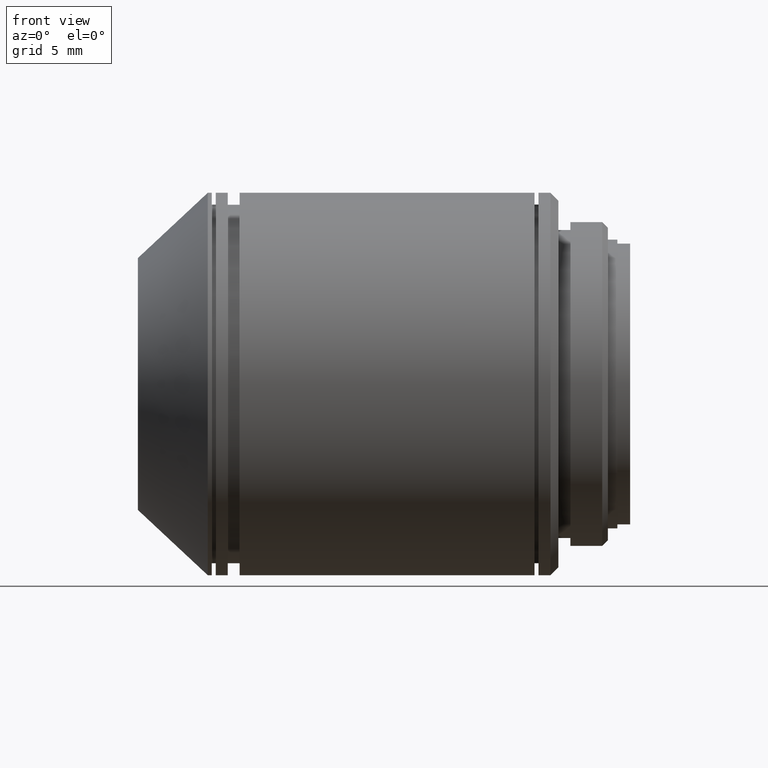
[diagram: clean part render]
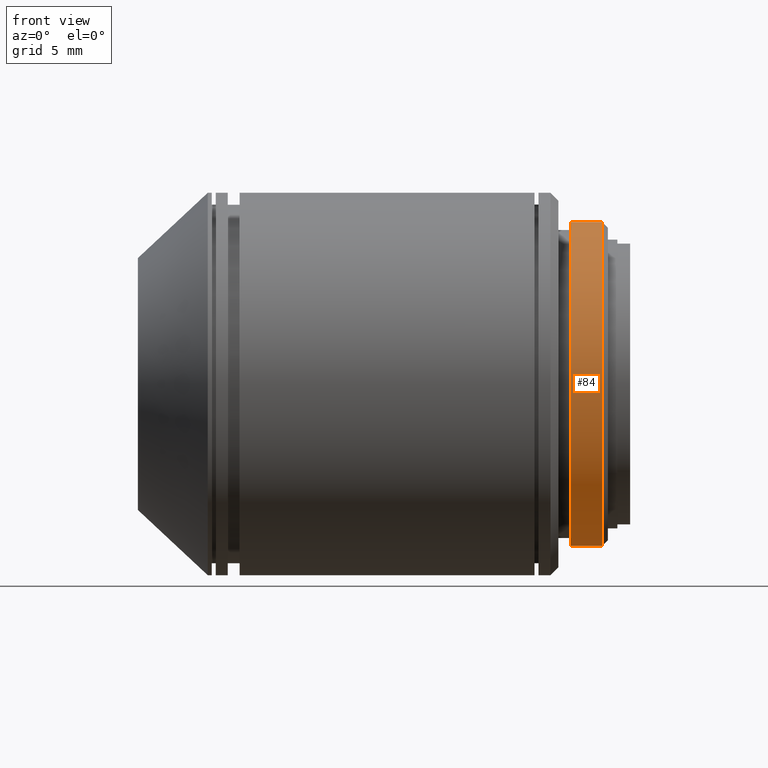
[diagram: same view with one face highlighted and labeled with its STEP entity id]
A machine part, front view. The second image highlights one B-rep face of the part: STEP entity #84.
In plain terms, the highlighted cylindrical surface (partial cylindrical patch) has radius 10.16 mm, axis along (1, 0, 0).
Its self-contained STEP definition (entity closure, byte-faithful):
#5 = EDGE_CURVE ( 'NONE', #531, #794, #972, .T. ) ;
#38 = CARTESIAN_POINT ( 'NONE',  ( -3.750000000000000000, 0.000000000000000000, -10.16000000000000014 ) ) ;
#59 = DIRECTION ( 'NONE',  ( 0.000000000000000000, 0.000000000000000000, -1.000000000000000000 ) ) ;
#79 = DIRECTION ( 'NONE',  ( 1.000000000000000000, 0.000000000000000000, 0.000000000000000000 ) ) ;
#80 = ORIENTED_EDGE ( 'NONE', *, *, #396, .F. ) ;
#84 = ADVANCED_FACE ( 'NONE', ( #837 ), #327, .T. ) ;
#122 = VERTEX_POINT ( 'NONE', #772 ) ;
#141 = AXIS2_PLACEMENT_3D ( 'NONE', #147, #238, #59 ) ;
#147 = CARTESIAN_POINT ( 'NONE',  ( 35.11960189172815205, 0.000000000000000000, 0.000000000000000000 ) ) ;
#198 = AXIS2_PLACEMENT_3D ( 'NONE', #1076, #201, #206 ) ;
#201 = DIRECTION ( 'NONE',  ( 1.000000000000000000, 0.000000000000000000, 0.000000000000000000 ) ) ;
#206 = DIRECTION ( 'NONE',  ( 0.000000000000000000, 0.000000000000000000, -1.000000000000000000 ) ) ;
#238 = DIRECTION ( 'NONE',  ( 1.000000000000000000, 0.000000000000000000, 0.000000000000000000 ) ) ;
#248 = DIRECTION ( 'NONE',  ( 1.000000000000000000, 0.000000000000000000, 0.000000000000000000 ) ) ;
#261 = LINE ( 'NONE', #864, #435 ) ;
#327 = CYLINDRICAL_SURFACE ( 'NONE', #141, 10.16000000000000014 ) ;
#396 = EDGE_CURVE ( 'NONE', #740, #122, #760, .T. ) ;
#435 = VECTOR ( 'NONE', #79, 1000.000000000000000 ) ;
#481 = DIRECTION ( 'NONE',  ( 0.000000000000000000, 0.000000000000000000, -1.000000000000000000 ) ) ;
#531 = VERTEX_POINT ( 'NONE', #938 ) ;
#572 = AXIS2_PLACEMENT_3D ( 'NONE', #1081, #820, #481 ) ;
#610 = EDGE_LOOP ( 'NONE', ( #1014, #727, #639, #80 ) ) ;
#639 = ORIENTED_EDGE ( 'NONE', *, *, #678, .T. ) ;
#648 = EDGE_CURVE ( 'NONE', #531, #740, #261, .T. ) ;
#678 = EDGE_CURVE ( 'NONE', #794, #122, #1048, .T. ) ;
#708 = CARTESIAN_POINT ( 'NONE',  ( -1.750000000000000000, 1.244241147933709878E-15, 10.16000000000000014 ) ) ;
#709 = VECTOR ( 'NONE', #248, 1000.000000000000000 ) ;
#727 = ORIENTED_EDGE ( 'NONE', *, *, #5, .T. ) ;
#740 = VERTEX_POINT ( 'NONE', #708 ) ;
#760 = CIRCLE ( 'NONE', #198, 10.16000000000000014 ) ;
#772 = CARTESIAN_POINT ( 'NONE',  ( -1.750000000000000000, 0.000000000000000000, -10.16000000000000014 ) ) ;
#794 = VERTEX_POINT ( 'NONE', #38 ) ;
#820 = DIRECTION ( 'NONE',  ( 1.000000000000000000, 0.000000000000000000, 0.000000000000000000 ) ) ;
#837 = FACE_OUTER_BOUND ( 'NONE', #610, .T. ) ;
#864 = CARTESIAN_POINT ( 'NONE',  ( 35.11960189172815205, 1.244241147933709878E-15, 10.16000000000000014 ) ) ;
#938 = CARTESIAN_POINT ( 'NONE',  ( -3.750000000000000000, 1.244241147933709878E-15, 10.16000000000000014 ) ) ;
#972 = CIRCLE ( 'NONE', #572, 10.16000000000000014 ) ;
#1014 = ORIENTED_EDGE ( 'NONE', *, *, #648, .F. ) ;
#1033 = CARTESIAN_POINT ( 'NONE',  ( 35.11960189172815205, 0.000000000000000000, -10.16000000000000014 ) ) ;
#1048 = LINE ( 'NONE', #1033, #709 ) ;
#1076 = CARTESIAN_POINT ( 'NONE',  ( -1.750000000000000000, 0.000000000000000000, 0.000000000000000000 ) ) ;
#1081 = CARTESIAN_POINT ( 'NONE',  ( -3.750000000000000000, 0.000000000000000000, 0.000000000000000000 ) ) ;